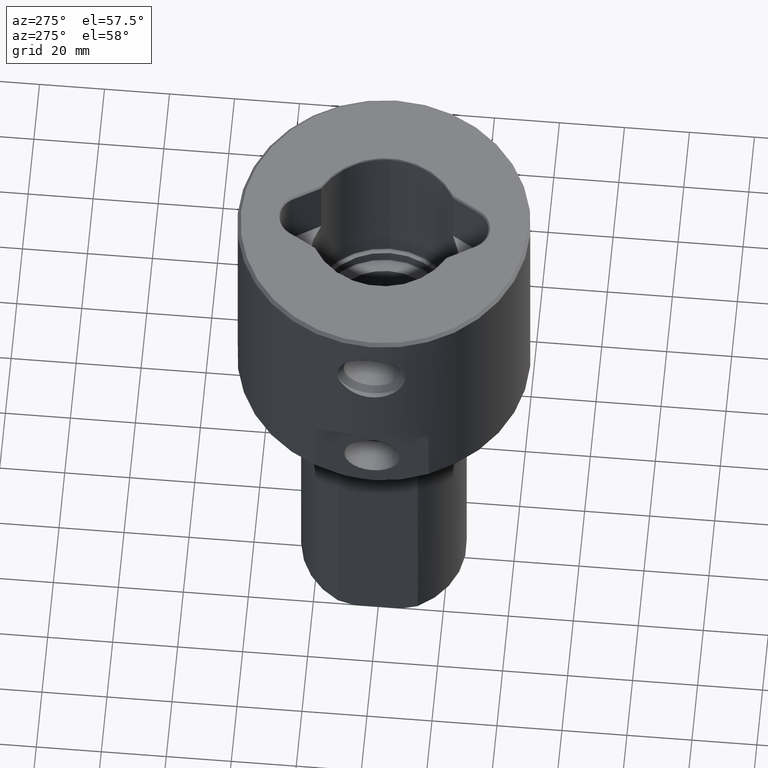
[diagram: clean part render]
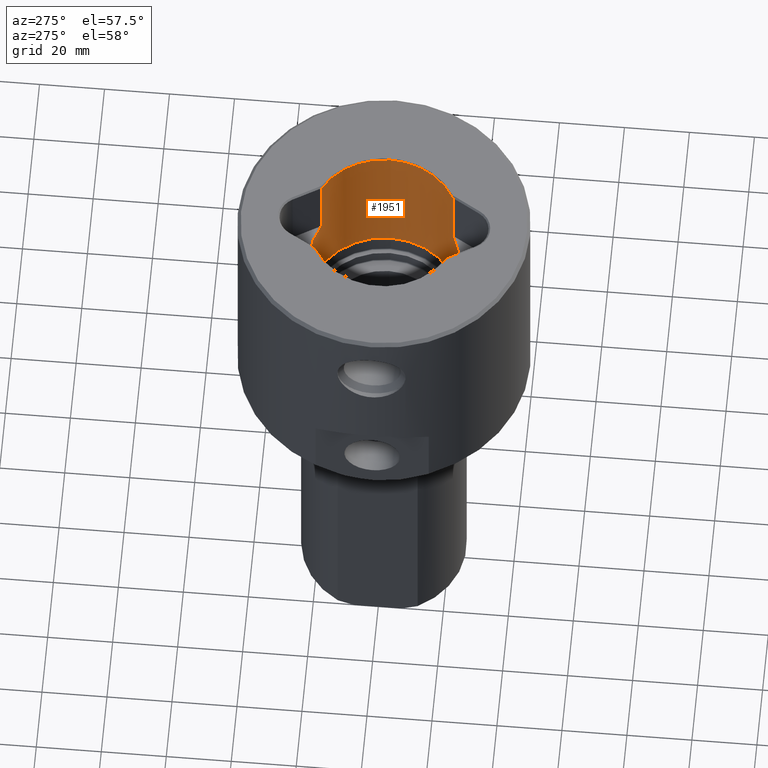
[diagram: same view with one face highlighted and labeled with its STEP entity id]
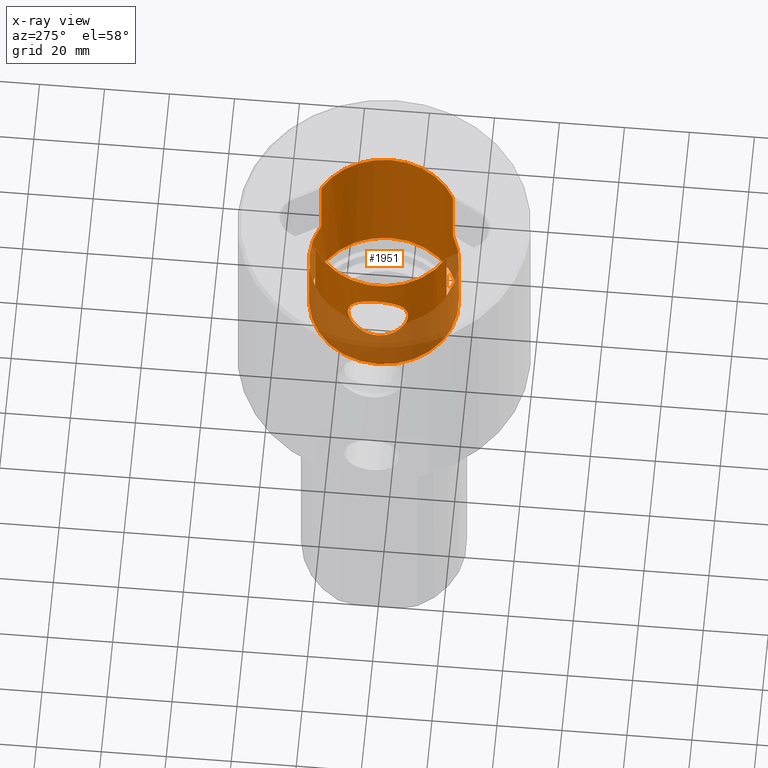
[diagram: x-ray of the same camera — body ghosted, the highlighted face saturated]
A machine part, auxiliary view. The second image highlights one B-rep face of the part: STEP entity #1951.
The next image is the same camera in x-ray: the body ghosted, the highlighted face saturated — about 28% of this face is hidden behind the body in this view.
In plain terms, the highlighted cylindrical surface (bore or boss wall) has radius 23 mm, axis along (-0, -0, 1).
Its self-contained STEP definition (entity closure, byte-faithful):
#17 = CARTESIAN_POINT ( 'NONE',  ( -22.72384259962971598, -3.553445863841714125, -10.23626930630977583 ) ) ;
#29 = VERTEX_POINT ( 'NONE', #1428 ) ;
#55 = CARTESIAN_POINT ( 'NONE',  ( -23.00000000000000000, 0.6082347658289933845, -9.499318246336745375 ) ) ;
#58 = CARTESIAN_POINT ( 'NONE',  ( 0.0000000000000000000, 0.0000000000000000000, -52.00000000000000000 ) ) ;
#69 = CARTESIAN_POINT ( 'NONE',  ( -21.56796373809558176, 7.990334691384142651, -14.25717498212328493 ) ) ;
#74 = CARTESIAN_POINT ( 'NONE',  ( -22.17963163383723568, 6.089103938593507515, -11.87174525865269459 ) ) ;
#88 = CARTESIAN_POINT ( 'NONE',  ( -21.35218582985323366, 8.548941602381139759, -22.64802850402846701 ) ) ;
#91 = DIRECTION ( 'NONE',  ( -0.0000000000000000000, -0.0000000000000000000, -1.000000000000000000 ) ) ;
#97 = LINE ( 'NONE', #1866, #1798 ) ;
#98 = CARTESIAN_POINT ( 'NONE',  ( -22.02117921097540076, 6.638577089726727998, -25.68463016906435570 ) ) ;
#99 = VERTEX_POINT ( 'NONE', #1118 ) ;
#104 = CARTESIAN_POINT ( 'NONE',  ( -21.56319897862898216, 8.009469379751426032, -23.83920450926731149 ) ) ;
#109 = ORIENTED_EDGE ( 'NONE', *, *, #1319, .T. ) ;
#113 = CARTESIAN_POINT ( 'NONE',  ( -22.67726712221193353, 3.841966447411761632, -27.73459106824410014 ) ) ;
#116 = DIRECTION ( 'NONE',  ( 1.000000000000000000, 0.0000000000000000000, 0.0000000000000000000 ) ) ;
#121 = CARTESIAN_POINT ( 'NONE',  ( -21.73893747677942656, 7.513280566101286695, -24.60809659737872579 ) ) ;
#123 = EDGE_CURVE ( 'NONE', #392, #99, #1926, .T. ) ;
#130 = CARTESIAN_POINT ( 'NONE',  ( -21.56769518351724457, -7.997333976704249281, -14.24841201226855780 ) ) ;
#136 = CARTESIAN_POINT ( 'NONE',  ( -21.51415964781949341, -8.132707707039232403, -23.56518540655410021 ) ) ;
#146 = CARTESIAN_POINT ( 'NONE',  ( -21.42413265430070979, -8.367062356530027500, -23.08018093658304082 ) ) ;
#152 = CIRCLE ( 'NONE', #463, 23.00000000000000000 ) ;
#153 = CARTESIAN_POINT ( 'NONE',  ( -22.05440507017930685, -6.527113987088721814, -12.29840467789705016 ) ) ;
#159 = CARTESIAN_POINT ( 'NONE',  ( -21.09324115158368684, -9.170163072701070561, -17.80758314851956214 ) ) ;
#163 = DIRECTION ( 'NONE',  ( 0.0000000000000000000, 0.0000000000000000000, 1.000000000000000000 ) ) ;
#179 = VERTEX_POINT ( 'NONE', #904 ) ;
#218 = CARTESIAN_POINT ( 'NONE',  ( -22.72389077249300726, 3.553137790715021449, -10.24197836558598418 ) ) ;
#227 = CARTESIAN_POINT ( 'NONE',  ( -22.53105274005737968, 4.648652804856443943, -10.77960533213887118 ) ) ;
#234 = CARTESIAN_POINT ( 'NONE',  ( -21.19525877638925593, 8.931833927761331893, -16.56157704016482057 ) ) ;
#245 = CARTESIAN_POINT ( 'NONE',  ( -23.00000000000000000, 2.816687638038911957E-15, -9.499999936397086842 ) ) ;
#253 = CARTESIAN_POINT ( 'NONE',  ( -21.19979806192673522, 8.920641233551807048, -21.52081787141796809 ) ) ;
#260 = CARTESIAN_POINT ( 'NONE',  ( -22.72233992232876076, 3.563042022506143880, -27.85958140315500131 ) ) ;
#268 = CARTESIAN_POINT ( 'NONE',  ( -22.60456160700064743, 4.248752159509423088, -27.52994229675251603 ) ) ;
#272 = CARTESIAN_POINT ( 'NONE',  ( -21.30702632042331857, 8.660913312667871011, -22.34945006140202395 ) ) ;
#280 = CARTESIAN_POINT ( 'NONE',  ( -21.29641033337583877, 8.686938868927462920, -22.27449858440617092 ) ) ;
#281 = CARTESIAN_POINT ( 'NONE',  ( 10.91466260670257604, -20.24524981771895327, -0.5000000000000094369 ) ) ;
#287 = CARTESIAN_POINT ( 'NONE',  ( -23.00016369087218848, -1.233030663882149325, -28.59920287354024282 ) ) ;
#295 = DIRECTION ( 'NONE',  ( 1.000000000000000000, 0.0000000000000000000, 0.0000000000000000000 ) ) ;
#296 = CARTESIAN_POINT ( 'NONE',  ( -22.63149343919972978, -4.102991228454548001, -10.49389645090635170 ) ) ;
#302 = CARTESIAN_POINT ( 'NONE',  ( -21.68219596461150900, -7.673485397926053331, -24.35828240900042729 ) ) ;
#311 = CARTESIAN_POINT ( 'NONE',  ( -21.41182795034898589, -8.398494587526974087, -23.00951495228304466 ) ) ;
#313 = CARTESIAN_POINT ( 'NONE',  ( 0.0000000000000000000, 0.0000000000000000000, -0.5000000000000420775 ) ) ;
#319 = CARTESIAN_POINT ( 'NONE',  ( -21.62366377216905988, -7.838873927513739126, -24.10204930583736171 ) ) ;
#327 = CARTESIAN_POINT ( 'NONE',  ( -21.32007021775146072, -8.628761515727088494, -15.68064491268996541 ) ) ;
#337 = CARTESIAN_POINT ( 'NONE',  ( 0.0000000000000000000, 0.0000000000000000000, -22.00000000005684342 ) ) ;
#350 = EDGE_LOOP ( 'NONE', ( #415 ) ) ;
#387 = CARTESIAN_POINT ( 'NONE',  ( -22.30139703355679259, 5.630667106291944890, -11.47697824264437472 ) ) ;
#392 = VERTEX_POINT ( 'NONE', #483 ) ;
#393 = CARTESIAN_POINT ( 'NONE',  ( -22.24070716954521387, 5.860967889226155414, -11.67282573195667972 ) ) ;
#399 = CARTESIAN_POINT ( 'NONE',  ( -21.06717411397095674, 9.228985580855134430, -19.03905174695704616 ) ) ;
#408 = CARTESIAN_POINT ( 'NONE',  ( -21.42536464145764441, 8.363906292873126702, -15.01125488093404847 ) ) ;
#410 = DIRECTION ( 'NONE',  ( -0.0000000000000000000, -0.0000000000000000000, 1.000000000000000000 ) ) ;
#413 = CARTESIAN_POINT ( 'NONE',  ( -22.73493784101223625, 3.482486891939513551, -10.21144871756013295 ) ) ;
#415 = ORIENTED_EDGE ( 'NONE', *, *, #1295, .T. ) ;
#423 = CARTESIAN_POINT ( 'NONE',  ( -22.65333099585510368, 3.978265299377399700, -27.66741500920904073 ) ) ;
#430 = EDGE_CURVE ( 'NONE', #896, #1631, #863, .T. ) ;
#431 = CARTESIAN_POINT ( 'NONE',  ( -21.35827167498114321, 8.533725513837172372, -22.68656849621162408 ) ) ;
#439 = CARTESIAN_POINT ( 'NONE',  ( -22.72390258877086566, -3.553062219558331680, -27.86389630476542223 ) ) ;
#447 = CARTESIAN_POINT ( 'NONE',  ( -22.14782106940571182, -6.202743092986229279, -26.12179550963443830 ) ) ;
#455 = CARTESIAN_POINT ( 'NONE',  ( -22.24033447787074280, -5.862381965757085922, -26.42679233528797766 ) ) ;
#463 = AXIS2_PLACEMENT_3D ( 'NONE', #1106, #91, #116 ) ;
#464 = CARTESIAN_POINT ( 'NONE',  ( -22.67908403977137866, -3.831211221833432212, -10.36030165171910333 ) ) ;
#469 = CARTESIAN_POINT ( 'NONE',  ( -21.79926034949641078, -7.342708338750682628, -24.87074861532654779 ) ) ;
#475 = CARTESIAN_POINT ( 'NONE',  ( -21.08010439829161697, -9.199426963980048555, -19.83897873955469393 ) ) ;
#480 = CARTESIAN_POINT ( 'NONE',  ( -21.56739911996869097, -7.991868696878805522, -23.83768363835525506 ) ) ;
#483 = CARTESIAN_POINT ( 'NONE',  ( -10.91466260670262400, 20.24524981771891063, -0.5000000000000379696 ) ) ;
#490 = CARTESIAN_POINT ( 'NONE',  ( -21.14375970693257045, -9.052150322188349918, -20.92173322556614679 ) ) ;
#499 = EDGE_CURVE ( 'NONE', #1672, #1513, #1266, .T. ) ;
#524 = CYLINDRICAL_SURFACE ( 'NONE', #1205, 23.00000000000000000 ) ;
#538 = ORIENTED_EDGE ( 'NONE', *, *, #499, .F. ) ;
#545 = CARTESIAN_POINT ( 'NONE',  ( -21.46267263286747706, 8.267913729345883311, -14.80186675897782500 ) ) ;
#551 = CARTESIAN_POINT ( 'NONE',  ( -21.09370288263390592, 9.169097589750924371, -17.78589546846254521 ) ) ;
#554 = DIRECTION ( 'NONE',  ( 1.000000000000000000, 0.0000000000000000000, 0.0000000000000000000 ) ) ;
#560 = CARTESIAN_POINT ( 'NONE',  ( -22.11750910333671882, 6.310228903539043976, -12.08064890684574522 ) ) ;
#568 = CARTESIAN_POINT ( 'NONE',  ( -21.38333100869500214, 8.470723403144669206, -15.25883804826787937 ) ) ;
#576 = CARTESIAN_POINT ( 'NONE',  ( -22.82561116504790277, 2.830735725138393999, -9.963054764579808875 ) ) ;
#580 = VECTOR ( 'NONE', #1043, 1000.000000000000000 ) ;
#585 = CARTESIAN_POINT ( 'NONE',  ( -21.33488062599638369, 8.592036748783453248, -22.53623361917312096 ) ) ;
#590 = CARTESIAN_POINT ( 'NONE',  ( -22.81172723933477897, 2.992998506621049160, -28.10678347472120464 ) ) ;
#595 = CARTESIAN_POINT ( 'NONE',  ( -10.91466260670261867, -20.24524981771890353, -22.00000000005684342 ) ) ;
#598 = CARTESIAN_POINT ( 'NONE',  ( -22.11663653233150484, -6.314092142414506448, -26.01701182977814852 ) ) ;
#604 = CARTESIAN_POINT ( 'NONE',  ( -21.31797490709209342, 8.633936132056835078, -22.42425275471823909 ) ) ;
#610 = CARTESIAN_POINT ( 'NONE',  ( -22.03755147042572204, 6.584028458535345685, -25.74255820444901843 ) ) ;
#617 = CARTESIAN_POINT ( 'NONE',  ( -21.23836169161953080, -8.827909869043070401, -16.28348058275870613 ) ) ;
#624 = CARTESIAN_POINT ( 'NONE',  ( -21.06759316250445835, -9.228029174473721952, -19.20932823070394946 ) ) ;
#626 = FACE_OUTER_BOUND ( 'NONE', #804, .T. ) ;
#631 = CARTESIAN_POINT ( 'NONE',  ( -21.46167451957895977, -8.270507643681744625, -23.29065403367318865 ) ) ;
#635 = CARTESIAN_POINT ( 'NONE',  ( -21.06709222527319980, -9.229172509539177227, -18.42582912374186677 ) ) ;
#641 = EDGE_CURVE ( 'NONE', #179, #29, #756, .T. ) ;
#649 = CARTESIAN_POINT ( 'NONE',  ( -23.00000000000000000, -1.231606358610408458, -9.501380281388996707 ) ) ;
#679 = AXIS2_PLACEMENT_3D ( 'NONE', #313, #1963, #973 ) ;
#696 = VECTOR ( 'NONE', #1488, 1000.000000000000000 ) ;
#701 = CARTESIAN_POINT ( 'NONE',  ( -21.43780063859425411, 8.331908771697378313, -14.94145884028197457 ) ) ;
#707 = CARTESIAN_POINT ( 'NONE',  ( -22.21036223753942451, 5.976118280693261120, -11.77074947661283311 ) ) ;
#709 = ORIENTED_EDGE ( 'NONE', *, *, #123, .T. ) ;
#715 = ORIENTED_EDGE ( 'NONE', *, *, #1943, .F. ) ;
#717 = CARTESIAN_POINT ( 'NONE',  ( -22.80711079758331294, 2.976077390652474008, -10.01339940146139895 ) ) ;
#725 = CARTESIAN_POINT ( 'NONE',  ( -21.48840987515005807, 8.200845572841206632, -14.66422847029682686 ) ) ;
#726 = DIRECTION ( 'NONE',  ( 1.000000000000000000, 1.776356839400250465E-15, 0.0000000000000000000 ) ) ;
#734 = CARTESIAN_POINT ( 'NONE',  ( -22.57893613824678525, 4.380826733046307098, -27.45652504894464840 ) ) ;
#743 = CARTESIAN_POINT ( 'NONE',  ( -21.92552471815843163, -6.962342128951659603, -25.35068456437648976 ) ) ;
#752 = CARTESIAN_POINT ( 'NONE',  ( -22.99376238534797778, 0.6151637664477905831, -28.58492068638966899 ) ) ;
#756 = CIRCLE ( 'NONE', #1158, 23.00000000000000000 ) ;
#761 = CARTESIAN_POINT ( 'NONE',  ( -22.98169375041680951, 0.9174706328013934042, -28.55416893689681146 ) ) ;
#770 = CARTESIAN_POINT ( 'NONE',  ( -21.98909999082398059, 6.744073043175377258, -25.56983880257880415 ) ) ;
#777 = CARTESIAN_POINT ( 'NONE',  ( -21.99048714479415167, -6.743085673882931452, -12.52124904567824437 ) ) ;
#781 = CARTESIAN_POINT ( 'NONE',  ( 10.91466260670257604, 20.24524981771893550, -0.5000000000000420775 ) ) ;
#785 = CARTESIAN_POINT ( 'NONE',  ( -21.36415086519173201, -8.518982205012950004, -22.72329301819350178 ) ) ;
#788 = LINE ( 'NONE', #833, #696 ) ;
#793 = CARTESIAN_POINT ( 'NONE',  ( -21.14411702123965142, -9.051315671885692637, -17.19595636477261280 ) ) ;
#801 = CARTESIAN_POINT ( 'NONE',  ( -21.29837238181584169, -8.682127267294816875, -15.83096598695664348 ) ) ;
#804 = EDGE_LOOP ( 'NONE', ( #1389 ) ) ;
#808 = CARTESIAN_POINT ( 'NONE',  ( -21.38765640564985659, -8.459860577215826183, -22.86716641314318821 ) ) ;
#833 = CARTESIAN_POINT ( 'NONE',  ( -10.91466260670262400, 20.24524981771891063, -22.00000000005684342 ) ) ;
#848 = ORIENTED_EDGE ( 'NONE', *, *, #641, .F. ) ;
#863 = CIRCLE ( 'NONE', #679, 23.00000000000000000 ) ;
#866 = CARTESIAN_POINT ( 'NONE',  ( -22.14860713331208686, 6.199935649198052623, -11.97581307807625528 ) ) ;
#875 = CARTESIAN_POINT ( 'NONE',  ( -21.41314483193057683, 8.395135516422806532, -15.08153936974191467 ) ) ;
#879 = CARTESIAN_POINT ( 'NONE',  ( -21.40115103517726425, 8.425599941222646549, -15.15231230670556428 ) ) ;
#886 = CARTESIAN_POINT ( 'NONE',  ( -22.75657037398804761, 3.337439859192872227, -10.15188975851455311 ) ) ;
#894 = CARTESIAN_POINT ( 'NONE',  ( -21.06691218295917523, 9.229583495564471107, -19.67199110716132537 ) ) ;
#896 = VERTEX_POINT ( 'NONE', #281 ) ;
#903 = CARTESIAN_POINT ( 'NONE',  ( -22.00513960089969245, 6.691325066451052628, -25.62723448582157815 ) ) ;
#904 = CARTESIAN_POINT ( 'NONE',  ( -10.91466260670262400, 20.24524981771891063, -22.00000000005684342 ) ) ;
#911 = CARTESIAN_POINT ( 'NONE',  ( -21.92530340960847468, 6.949282648027236498, -25.33691674089110180 ) ) ;
#921 = CARTESIAN_POINT ( 'NONE',  ( -21.45584064837053617, 8.289050883723099616, -23.29607877845090513 ) ) ;
#929 = CARTESIAN_POINT ( 'NONE',  ( -22.52768520073906444, 4.644975880120076006, -27.30969055332891671 ) ) ;
#938 = CARTESIAN_POINT ( 'NONE',  ( -22.41747623425172975, -5.143613446475032269, -26.98066070310308362 ) ) ;
#945 = CARTESIAN_POINT ( 'NONE',  ( -22.60678795073562597, -4.236883887990334330, -10.56388133509260996 ) ) ;
#950 = EDGE_CURVE ( 'NONE', #29, #1631, #1259, .T. ) ;
#953 = CARTESIAN_POINT ( 'NONE',  ( -21.43664660939345978, -8.334877452247265950, -23.15033863561308891 ) ) ;
#961 = CARTESIAN_POINT ( 'NONE',  ( -21.11851690730321707, -9.111111748003938970, -20.61568333158664856 ) ) ;
#964 = CARTESIAN_POINT ( 'NONE',  ( -21.27700808665464649, -8.734536625048905378, -15.98139048609012036 ) ) ;
#965 = FACE_OUTER_BOUND ( 'NONE', #1937, .T. ) ;
#972 = CARTESIAN_POINT ( 'NONE',  ( -21.34274701228024895, -8.572518262153085544, -15.53063411302369623 ) ) ;
#973 = DIRECTION ( 'NONE',  ( 1.000000000000000000, 0.0000000000000000000, 0.0000000000000000000 ) ) ;
#1034 = CARTESIAN_POINT ( 'NONE',  ( -21.38921373392659575, 8.455873164874144976, -15.22320735570816019 ) ) ;
#1040 = CARTESIAN_POINT ( 'NONE',  ( -21.37181345435472224, 8.499755793379724977, -15.32903808827110481 ) ) ;
#1042 = VECTOR ( 'NONE', #410, 1000.000000000000000 ) ;
#1043 = DIRECTION ( 'NONE',  ( -0.0000000000000000000, -0.0000000000000000000, 1.000000000000000000 ) ) ;
#1048 = CARTESIAN_POINT ( 'NONE',  ( -21.36585701750951216, 8.514702220708567637, -15.36609646206387580 ) ) ;
#1056 = CARTESIAN_POINT ( 'NONE',  ( -22.76713799214530454, 3.265383805323135213, -10.12283166627401343 ) ) ;
#1063 = CARTESIAN_POINT ( 'NONE',  ( -22.63551422433916116, 4.118344980919086851, -10.48621554979279047 ) ) ;
#1072 = CARTESIAN_POINT ( 'NONE',  ( -21.34059632680472163, 8.577831348882838824, -22.57352337807150988 ) ) ;
#1080 = CARTESIAN_POINT ( 'NONE',  ( -22.30292618557312778, 5.642420708666421092, -26.63497592804665359 ) ) ;
#1089 = CARTESIAN_POINT ( 'NONE',  ( -22.05340321228136702, -6.530498201250646062, -25.79809025615024609 ) ) ;
#1095 = CARTESIAN_POINT ( 'NONE',  ( -21.86243240703701929, 7.143811954953564580, -25.09779306872973947 ) ) ;
#1104 = EDGE_CURVE ( 'NONE', #1672, #896, #97, .T. ) ;
#1105 = CARTESIAN_POINT ( 'NONE',  ( -21.36401102635698734, 8.519332888536347070, -22.72242204222570194 ) ) ;
#1106 = CARTESIAN_POINT ( 'NONE',  ( 0.0000000000000000000, 0.0000000000000000000, -45.00000000000000000 ) ) ;
#1111 = CARTESIAN_POINT ( 'NONE',  ( -21.07527507812124057, -9.210474757704039561, -19.68233508722643066 ) ) ;
#1118 = CARTESIAN_POINT ( 'NONE',  ( -10.91466260670260979, -20.24524981771891419, -0.5000000000000420775 ) ) ;
#1119 = CARTESIAN_POINT ( 'NONE',  ( -21.35470073975904270, -8.542701678204499771, -15.45390393516762906 ) ) ;
#1125 = CARTESIAN_POINT ( 'NONE',  ( -21.07043278244636397, -9.221544262248325907, -19.44628399713250033 ) ) ;
#1133 = CARTESIAN_POINT ( 'NONE',  ( -21.86551164996016539, -7.134381562928644449, -12.99027795116049155 ) ) ;
#1137 = CARTESIAN_POINT ( 'NONE',  ( -22.47596021683776257, -4.888335786943474481, -10.94249311735770114 ) ) ;
#1158 = AXIS2_PLACEMENT_3D ( 'NONE', #1873, #1562, #726 ) ;
#1169 = CARTESIAN_POINT ( 'NONE',  ( -22.90103356804706181, -2.420331745694255687, -9.746803404693226369 ) ) ;
#1188 = EDGE_CURVE ( 'NONE', #1324, #1324, #152, .T. ) ;
#1194 = CARTESIAN_POINT ( 'NONE',  ( -10.91466260670261867, -20.24524981771890353, -22.00000000005684342 ) ) ;
#1205 = AXIS2_PLACEMENT_3D ( 'NONE', #58, #1539, #554 ) ;
#1211 = CARTESIAN_POINT ( 'NONE',  ( -22.78728950815413512, 3.120807086567251698, -10.06762981214273722 ) ) ;
#1220 = CARTESIAN_POINT ( 'NONE',  ( -21.27055402798616157, 8.753845057970076837, -15.95903044274821880 ) ) ;
#1230 = CARTESIAN_POINT ( 'NONE',  ( -21.92632470633930808, 6.959965322513297359, -12.74618858681818701 ) ) ;
#1239 = CARTESIAN_POINT ( 'NONE',  ( -21.16845428575845389, 8.994479011884541464, -21.21625088568634609 ) ) ;
#1248 = CARTESIAN_POINT ( 'NONE',  ( -22.41648783579879733, 5.147919298851185488, -26.97857442946059336 ) ) ;
#1254 = CARTESIAN_POINT ( 'NONE',  ( -21.27517835928088274, 8.738989981446644961, -22.12459563041446486 ) ) ;
#1259 = LINE ( 'NONE', #1708, #1042 ) ;
#1260 = CARTESIAN_POINT ( 'NONE',  ( -22.99995882456430607, 0.3120696555389739224, -28.60019870940277187 ) ) ;
#1266 = CIRCLE ( 'NONE', #1795, 23.00000000000000000 ) ;
#1267 = CARTESIAN_POINT ( 'NONE',  ( -22.20987329386300857, -5.977943681947054166, -26.32824479804191142 ) ) ;
#1274 = CARTESIAN_POINT ( 'NONE',  ( -22.47326866091163211, 4.900668593943566798, -27.15037368016756147 ) ) ;
#1278 = CARTESIAN_POINT ( 'NONE',  ( -21.45981701072334502, -8.278887322818308192, -14.79717081027947323 ) ) ;
#1286 = CARTESIAN_POINT ( 'NONE',  ( -21.68452086419236480, -7.666912996141661552, -13.73465719392509499 ) ) ;
#1291 = CARTESIAN_POINT ( 'NONE',  ( -21.08651752932437518, -9.184703505584478123, -19.99489865081524442 ) ) ;
#1295 = EDGE_CURVE ( 'NONE', #1436, #1436, #1803, .T. ) ;
#1296 = CARTESIAN_POINT ( 'NONE',  ( 0.0000000000000000000, 0.0000000000000000000, -0.5000000000000420775 ) ) ;
#1300 = CARTESIAN_POINT ( 'NONE',  ( -22.18224092094961009, -6.095170613500301648, -11.85271594233465997 ) ) ;
#1302 = LINE ( 'NONE', #1194, #580 ) ;
#1306 = CARTESIAN_POINT ( 'NONE',  ( -21.25697872066966454, -8.783120649119478429, -16.13222868469080495 ) ) ;
#1319 = EDGE_CURVE ( 'NONE', #179, #392, #788, .T. ) ;
#1324 = VERTEX_POINT ( 'NONE', #1564 ) ;
#1363 = CARTESIAN_POINT ( 'NONE',  ( -22.36054772342630770, 5.391705029692483997, -11.29341890286688788 ) ) ;
#1368 = CARTESIAN_POINT ( 'NONE',  ( -22.97586436203166826, 1.209616142787928839, -9.560808937072318159 ) ) ;
#1378 = CARTESIAN_POINT ( 'NONE',  ( -22.87706652240109051, 2.392945161045807012, -9.823678175334263685 ) ) ;
#1385 = CARTESIAN_POINT ( 'NONE',  ( -21.79970604825082958, 7.341385820768685733, -13.22640520710874235 ) ) ;
#1389 = ORIENTED_EDGE ( 'NONE', *, *, #1188, .T. ) ;
#1393 = CARTESIAN_POINT ( 'NONE',  ( -21.23678438213827135, 8.831703635571566124, -21.82300431827547982 ) ) ;
#1396 = DIRECTION ( 'NONE',  ( -0.0000000000000000000, -0.0000000000000000000, 1.000000000000000000 ) ) ;
#1401 = CARTESIAN_POINT ( 'NONE',  ( -22.92816037652983141, 1.816442057464925819, -28.41548904527311592 ) ) ;
#1412 = CARTESIAN_POINT ( 'NONE',  ( -22.62939486949827383, 4.114564151343037324, -27.60023895017398132 ) ) ;
#1421 = CARTESIAN_POINT ( 'NONE',  ( -22.99999979782588611, 0.003049591654749235665, -28.59999954223026819 ) ) ;
#1428 = CARTESIAN_POINT ( 'NONE',  ( 10.91466260670257604, 20.24524981771893195, -22.00000000005684342 ) ) ;
#1429 = CARTESIAN_POINT ( 'NONE',  ( -21.34639107832897764, 8.563386475631990180, -22.61077594104998667 ) ) ;
#1436 = VERTEX_POINT ( 'NONE', #1895 ) ;
#1441 = CARTESIAN_POINT ( 'NONE',  ( -22.05337467569091814, 6.530594568153388124, -25.79799039467137689 ) ) ;
#1447 = CARTESIAN_POINT ( 'NONE',  ( -22.65528873948555599, -3.967101225143990106, -10.42709905131272663 ) ) ;
#1453 = CARTESIAN_POINT ( 'NONE',  ( -21.06921878472681797, -9.224316988647847992, -19.36741936516760632 ) ) ;
#1459 = CARTESIAN_POINT ( 'NONE',  ( -21.37601957411037290, -8.489217512258496967, -22.79691052741757318 ) ) ;
#1467 = CARTESIAN_POINT ( 'NONE',  ( -21.06717146787798001, -9.228991621137598855, -19.05069429043951956 ) ) ;
#1474 = CARTESIAN_POINT ( 'NONE',  ( -22.53023710284395165, -4.632558926660820475, -10.78339844142932868 ) ) ;
#1478 = ORIENTED_EDGE ( 'NONE', *, *, #430, .T. ) ;
#1488 = DIRECTION ( 'NONE',  ( -0.0000000000000000000, -0.0000000000000000000, 1.000000000000000000 ) ) ;
#1504 = FACE_BOUND ( 'NONE', #350, .T. ) ;
#1513 = VERTEX_POINT ( 'NONE', #595 ) ;
#1529 = CARTESIAN_POINT ( 'NONE',  ( -21.68265576935557704, 7.672186050118390277, -13.73788250936971345 ) ) ;
#1537 = CARTESIAN_POINT ( 'NONE',  ( -21.14448082951158270, 9.050465758756127244, -17.17373625431368467 ) ) ;
#1539 = DIRECTION ( 'NONE',  ( -0.0000000000000000000, -0.0000000000000000000, 1.000000000000000000 ) ) ;
#1545 = CARTESIAN_POINT ( 'NONE',  ( -21.14322057511305886, 9.053409507589709193, -20.90930336108062448 ) ) ;
#1551 = CARTESIAN_POINT ( 'NONE',  ( -21.39515413680060618, 8.440832153622569223, -15.18769877518738909 ) ) ;
#1561 = CARTESIAN_POINT ( 'NONE',  ( -21.06743604498273470, 9.228387666145799528, -18.40611238675276695 ) ) ;
#1562 = DIRECTION ( 'NONE',  ( -0.0000000000000000000, -0.0000000000000000000, -1.000000000000000000 ) ) ;
#1564 = CARTESIAN_POINT ( 'NONE',  ( 23.00000000000000000, 0.0000000000000000000, -45.00000000000000000 ) ) ;
#1569 = CARTESIAN_POINT ( 'NONE',  ( -22.88111189578982163, 2.410314626890302847, -28.29208602209390477 ) ) ;
#1577 = CARTESIAN_POINT ( 'NONE',  ( -22.69999309307725710, 3.705552901477418004, -27.79778088526344604 ) ) ;
#1584 = CARTESIAN_POINT ( 'NONE',  ( -22.30125684588621482, -5.631258533377149433, -26.62388740978011725 ) ) ;
#1591 = CARTESIAN_POINT ( 'NONE',  ( -21.25527754224403765, 8.787234836581443886, -21.97409754170423568 ) ) ;
#1602 = CARTESIAN_POINT ( 'NONE',  ( -21.68035797739594628, 7.678676837317999215, -24.35179923467492102 ) ) ;
#1610 = CARTESIAN_POINT ( 'NONE',  ( -22.70169372857754908, -3.695085128610146263, -10.29745254401184518 ) ) ;
#1619 = CARTESIAN_POINT ( 'NONE',  ( -21.06840597361563638, -9.226173081560784084, -19.28837379793577611 ) ) ;
#1623 = CARTESIAN_POINT ( 'NONE',  ( -21.07204688100465617, -9.217854427400231643, -19.52496769383047592 ) ) ;
#1629 = ORIENTED_EDGE ( 'NONE', *, *, #950, .F. ) ;
#1630 = CARTESIAN_POINT ( 'NONE',  ( -21.19424530619127367, -8.934227470557175366, -21.53383301352514678 ) ) ;
#1631 = VERTEX_POINT ( 'NONE', #781 ) ;
#1636 = CARTESIAN_POINT ( 'NONE',  ( -21.36638032542174415, -8.513388972050476511, -15.38093358795783416 ) ) ;
#1643 = AXIS2_PLACEMENT_3D ( 'NONE', #1296, #163, #295 ) ;
#1650 = ORIENTED_EDGE ( 'NONE', *, *, #1104, .T. ) ;
#1672 = VERTEX_POINT ( 'NONE', #1949 ) ;
#1684 = DIRECTION ( 'NONE',  ( 1.000000000000000000, 0.0000000000000000000, 0.0000000000000000000 ) ) ;
#1696 = CARTESIAN_POINT ( 'NONE',  ( -22.05474017888710847, 6.525981584542095426, -12.29723264849805275 ) ) ;
#1704 = CARTESIAN_POINT ( 'NONE',  ( -21.62413062990794899, 7.837586164793242105, -13.99362116050019722 ) ) ;
#1708 = CARTESIAN_POINT ( 'NONE',  ( 10.91466260670257604, 20.24524981771893195, -22.00000000005684342 ) ) ;
#1712 = CARTESIAN_POINT ( 'NONE',  ( -22.90597546952662711, 2.098729708249012837, -9.746303544369537164 ) ) ;
#1721 = CARTESIAN_POINT ( 'NONE',  ( -22.08621276544159784, 6.418909831964217716, -12.18778876365301223 ) ) ;
#1729 = CARTESIAN_POINT ( 'NONE',  ( -22.84276295083229869, 2.684805537107531226, -9.916595901497959886 ) ) ;
#1737 = CARTESIAN_POINT ( 'NONE',  ( -21.79993449782533688, 7.335076272146867638, -24.85676120873033312 ) ) ;
#1743 = CARTESIAN_POINT ( 'NONE',  ( -22.95168461689983630, 1.519505772752237194, -28.47719055686272327 ) ) ;
#1752 = CARTESIAN_POINT ( 'NONE',  ( -21.97310489541197498, 6.795993377469752517, -25.51196607237651293 ) ) ;
#1760 = CARTESIAN_POINT ( 'NONE',  ( -21.32924538636162026, 8.606003209874581117, -22.49890666435482700 ) ) ;
#1769 = CARTESIAN_POINT ( 'NONE',  ( -21.92746958871284946, -6.944492359547123961, -12.75090253182248468 ) ) ;
#1776 = CARTESIAN_POINT ( 'NONE',  ( -22.41919643823242581, -5.136110499584931155, -11.11433773165664007 ) ) ;
#1782 = CARTESIAN_POINT ( 'NONE',  ( -21.06718137320357798, -9.228969010087402225, -19.12880243627672527 ) ) ;
#1789 = CARTESIAN_POINT ( 'NONE',  ( -21.20112763351925622, -8.917488308890254345, -16.58598437889450494 ) ) ;
#1795 = AXIS2_PLACEMENT_3D ( 'NONE', #337, #1856, #1684 ) ;
#1797 = CARTESIAN_POINT ( 'NONE',  ( -22.30566888102174872, -5.631659924867842726, -11.45802696025451972 ) ) ;
#1798 = VECTOR ( 'NONE', #1396, 1000.000000000000000 ) ;
#1803 = B_SPLINE_CURVE_WITH_KNOTS ( 'NONE', 3,
 ( #245, #55, #1368, #1878, #1712, #1378, #1729, #576, #717, #1211, #1887, #1056, #886, #2026, #413, #218, #1063, #227, #1855, #1363, #387, #393, #707, #74, #866, #2019, #560, #2042, #1721, #1862, #1696, #1230, #1385, #1529, #1704, #69, #1872, #725, #545, #701, #408, #875, #879, #1551, #1034, #568, #2034, #1040, #1048, #1220, #234, #1537, #551, #1561, #399, #894, #2053, #1545, #1239, #253, #1393, #1591, #1254, #280, #272, #604, #1760, #585, #1072, #1429, #88, #431, #1105, #921, #104, #1602, #121, #1737, #1095, #2066, #911, #1916, #1752, #770, #903, #98, #610, #1441, #2057, #1080, #1248, #1274, #929, #734, #268, #1412, #423, #113, #1577, #260, #590, #1569, #1401, #1743, #2087, #761, #752, #1260, #1421, #287, #1924, #439, #1902, #1910, #938, #2076, #1584, #455, #1267, #1894, #447, #598, #2095, #1089, #743, #469, #302, #319, #480, #136, #1953, #631, #953, #146, #311, #2132, #808, #1459, #785, #2110, #1630, #490, #961, #2117, #1291, #475, #1111, #1623, #1125, #1453, #1619, #624, #1782, #1467, #635, #159, #793, #1960, #1789, #617, #1306, #964, #801, #1938, #327, #2103, #972, #1119, #1636, #1278, #130, #1286, #1945, #2125, #1133, #1769, #777, #153, #1300, #1797, #1776, #1137, #1474, #1931, #945, #296, #1447, #464, #1610, #17, #1169, #649, #1809 ),
 .UNSPECIFIED., .T., .F.,
 ( 4, 3, 3, 3, 3, 3, 3, 3, 3, 3, 3, 3, 3, 3, 3, 3, 3, 3, 3, 3, 3, 3, 3, 3, 3, 3, 3, 3, 3, 3, 3, 3, 3, 3, 3, 3, 3, 3, 3, 3, 3, 3, 3, 3, 3, 3, 3, 3, 3, 3, 3, 3, 3, 3, 3, 3, 3, 3, 3, 3, 3, 3, 3, 3, 4 ),
 ( 0.0000000000000000000, 0.01562500000000000000, 0.03125000000000000000, 0.04687500000000000000, 0.06250000000000000000, 0.07812500000000000000, 0.09375000000000000000, 0.1093750000000000000, 0.1250000000000000000, 0.1406250000000000000, 0.1562500000000000000, 0.1718750000000000000, 0.1875000000000000000, 0.2031250000000000000, 0.2187500000000000000, 0.2343750000000000000, 0.2500000000000000000, 0.2656250000000000000, 0.2812500000000000000, 0.2968750000000000000, 0.3125000000000000000, 0.3281250000000000000, 0.3437500000000000000, 0.3593750000000000000, 0.3750000000000000000, 0.3906250000000000000, 0.4062500000000000000, 0.4218750000000000000, 0.4375000000000000000, 0.4531250000000000000, 0.4687500000000000000, 0.4843750000000000000, 0.5000000000000000000, 0.5156250000000000000, 0.5312500000000000000, 0.5468750000000000000, 0.5625000000000000000, 0.5781250000000000000, 0.5937500000000000000, 0.6093750000000000000, 0.6250000000000000000, 0.6406250000000000000, 0.6562500000000000000, 0.6718750000000000000, 0.6875000000000000000, 0.7031250000000000000, 0.7187500000000000000, 0.7343750000000000000, 0.7500000000000000000, 0.7656250000000000000, 0.7812500000000000000, 0.7968750000000000000, 0.8125000000000000000, 0.8281250000000000000, 0.8437500000000000000, 0.8593750000000000000, 0.8750000000000000000, 0.8906250000000000000, 0.9062500000000000000, 0.9218750000000000000, 0.9375000000000000000, 0.9531250000000000000, 0.9687500000000000000, 0.9843750000000000000, 1.000000000000000000 ),
 .UNSPECIFIED. ) ;
#1809 = CARTESIAN_POINT ( 'NONE',  ( -23.00000000000000000, 2.816687638038911957E-15, -9.499999936397086842 ) ) ;
#1855 = CARTESIAN_POINT ( 'NONE',  ( -22.41738272896999717, 5.144020954747137608, -11.12214771262421564 ) ) ;
#1856 = DIRECTION ( 'NONE',  ( -0.0000000000000000000, -0.0000000000000000000, -1.000000000000000000 ) ) ;
#1862 = CARTESIAN_POINT ( 'NONE',  ( -22.07079211295558352, 6.471733617295694962, -12.24111315620803531 ) ) ;
#1866 = CARTESIAN_POINT ( 'NONE',  ( 10.91466260670257604, -20.24524981771895327, -22.00000000005684342 ) ) ;
#1872 = CARTESIAN_POINT ( 'NONE',  ( -21.51492782946523263, 8.130675279022186785, -14.52854397423897836 ) ) ;
#1873 = CARTESIAN_POINT ( 'NONE',  ( 0.0000000000000000000, 0.0000000000000000000, -22.00000000005684342 ) ) ;
#1878 = CARTESIAN_POINT ( 'NONE',  ( -22.92927176702830749, 1.802358519761984690, -9.684472008603798088 ) ) ;
#1887 = CARTESIAN_POINT ( 'NONE',  ( -22.77737886343954798, 3.193171934524640765, -10.09474501748340636 ) ) ;
#1894 = CARTESIAN_POINT ( 'NONE',  ( -22.17900560647991881, -6.091394043557951221, -26.22657918949072808 ) ) ;
#1895 = CARTESIAN_POINT ( 'NONE',  ( -23.00000000000000000, 2.816687638038911957E-15, -9.499999936397086842 ) ) ;
#1902 = CARTESIAN_POINT ( 'NONE',  ( -22.63568634735457152, -4.117256470268785051, -27.61937357842639429 ) ) ;
#1910 = CARTESIAN_POINT ( 'NONE',  ( -22.53131565782850032, -4.647465631498376659, -27.32496171120561002 ) ) ;
#1916 = CARTESIAN_POINT ( 'NONE',  ( -21.95717106681080821, 6.847089800988913844, -25.45361629521470803 ) ) ;
#1924 = CARTESIAN_POINT ( 'NONE',  ( -22.90033507160345394, -2.424673718137423162, -28.35294175744348522 ) ) ;
#1926 = CIRCLE ( 'NONE', #1643, 23.00000000000000000 ) ;
#1931 = CARTESIAN_POINT ( 'NONE',  ( -22.58127100143840238, -4.368775567547163341, -10.63705370387151738 ) ) ;
#1937 = EDGE_LOOP ( 'NONE', ( #538, #1650, #1478, #1629, #848, #109, #709, #715 ) ) ;
#1938 = CARTESIAN_POINT ( 'NONE',  ( -21.30905452939644107, -8.655922588417771735, -15.75575373738990415 ) ) ;
#1943 = EDGE_CURVE ( 'NONE', #1513, #99, #1302, .T. ) ;
#1945 = CARTESIAN_POINT ( 'NONE',  ( -21.74293370452992491, -7.501702505860368575, -13.47777978475336447 ) ) ;
#1949 = CARTESIAN_POINT ( 'NONE',  ( 10.91466260670257604, -20.24524981771895327, -22.00000000005684342 ) ) ;
#1951 = ADVANCED_FACE ( 'NONE', ( #1504, #965, #626 ), #524, .F. ) ;
#1953 = CARTESIAN_POINT ( 'NONE',  ( -21.48753991174489641, -8.203127212119444067, -23.42893629065352812 ) ) ;
#1960 = CARTESIAN_POINT ( 'NONE',  ( -21.16955495606763549, -8.991891971478002787, -16.89014297289914168 ) ) ;
#1963 = DIRECTION ( 'NONE',  ( 0.0000000000000000000, 0.0000000000000000000, 1.000000000000000000 ) ) ;
#2019 = CARTESIAN_POINT ( 'NONE',  ( -22.13309488304951600, 6.255351504500324289, -12.02784698778803651 ) ) ;
#2026 = CARTESIAN_POINT ( 'NONE',  ( -22.74600275583079423, 3.409495913062609684, -10.18094785075509456 ) ) ;
#2034 = CARTESIAN_POINT ( 'NONE',  ( -21.37744828346340498, 8.485573641415195212, -15.29446874082759855 ) ) ;
#2042 = CARTESIAN_POINT ( 'NONE',  ( -22.10186093438915833, 6.364569367751630402, -12.13421883524937961 ) ) ;
#2053 = CARTESIAN_POINT ( 'NONE',  ( -21.09275315382226879, 9.171270499000044651, -20.29540831186918126 ) ) ;
#2057 = CARTESIAN_POINT ( 'NONE',  ( -22.17996031781247979, 6.103123445097724087, -26.24144791645025165 ) ) ;
#2066 = CARTESIAN_POINT ( 'NONE',  ( -21.89368136164285872, 7.048179796356913052, -25.21830899872944443 ) ) ;
#2076 = CARTESIAN_POINT ( 'NONE',  ( -22.36055652246334802, -5.391687353963359186, -26.80851019905181687 ) ) ;
#2087 = CARTESIAN_POINT ( 'NONE',  ( -22.96962511548564123, 1.219777499154996114, -28.52341718740395393 ) ) ;
#2095 = CARTESIAN_POINT ( 'NONE',  ( -22.08537283581209820, -6.422537219325393565, -25.90994167909368429 ) ) ;
#2103 = CARTESIAN_POINT ( 'NONE',  ( -21.33140861501585306, -8.600639888940087019, -15.60563951285683082 ) ) ;
#2110 = CARTESIAN_POINT ( 'NONE',  ( -21.26920119384260488, -8.757099747048597393, -22.13435294440092704 ) ) ;
#2117 = CARTESIAN_POINT ( 'NONE',  ( -21.09934379138989513, -9.155256588793333705, -20.30673847333634896 ) ) ;
#2125 = CARTESIAN_POINT ( 'NONE',  ( -21.80355371120748131, -7.324270766310164937, -13.22965337049849843 ) ) ;
#2132 = CARTESIAN_POINT ( 'NONE',  ( -21.39974217799942124, -8.429177582371400135, -22.93834068271311821 ) ) ;